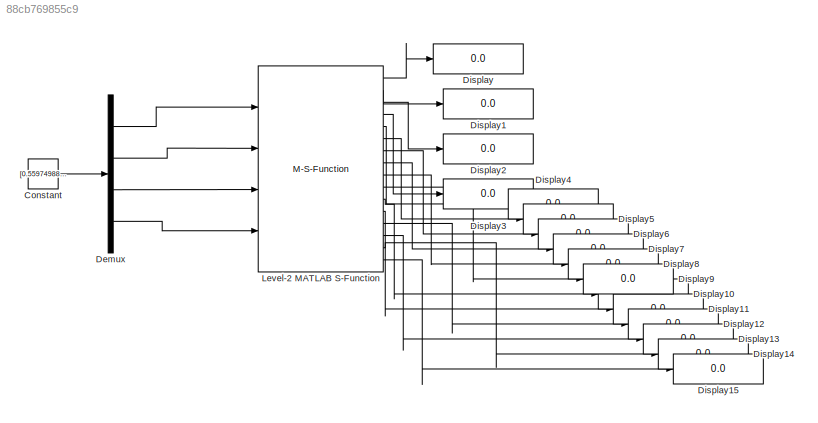
MODEL slx_88cb769855c9
KIND model
CONFIG AbsTol = auto
CONFIG EnableMultiTasking = off
CONFIG FixedStep = auto
CONFIG MaxStep = auto
CONFIG MinStep = auto
CONFIG RelTol = 1e-3
CONFIG SampleTimeConstraint = Unconstrained
CONFIG SolverName = VariableStepAuto
CONFIG StartTime = 0.0
CONFIG StopTime = 10.0
BLOCK [Constant] Constant
  Value = [0.559749888250068,2.03629310837718,1.03864119408452,-0.000110815770005286]
BLOCK [Demux] Demux
  Ports = [1, 4]
BLOCK [Display] Display
  Decimation = 1
  Ports = [1]
BLOCK [Display] Display1
  Decimation = 1
  Ports = [1]
BLOCK [Display] Display10
  Decimation = 1
  Ports = [1]
BLOCK [Display] Display11
  Decimation = 1
  Ports = [1]
BLOCK [Display] Display12
  Decimation = 1
  Ports = [1]
BLOCK [Display] Display13
  Decimation = 1
  Ports = [1]
BLOCK [Display] Display14
  Decimation = 1
  Ports = [1]
BLOCK [Display] Display15
  Decimation = 1
  Ports = [1]
BLOCK [Display] Display2
  Decimation = 1
  Ports = [1]
BLOCK [Display] Display3
  Decimation = 1
  Ports = [1]
BLOCK [Display] Display4
  Decimation = 1
  Ports = [1]
BLOCK [Display] Display5
  Decimation = 1
  Ports = [1]
BLOCK [Display] Display6
  Decimation = 1
  Ports = [1]
BLOCK [Display] Display7
  Decimation = 1
  Ports = [1]
BLOCK [Display] Display8
  Decimation = 1
  Ports = [1]
BLOCK [Display] Display9
  Decimation = 1
  Ports = [1]
BLOCK [M-S-Function] Level-2 MATLAB S-Function
  FunctionName = SlungQuadDynamics
  Ports = [4, 16]
LINE Constant:1 -> Demux:1
LINE Demux:1 -> Level-2 MATLAB S-Function:1
LINE Demux:2 -> Level-2 MATLAB S-Function:2
LINE Demux:3 -> Level-2 MATLAB S-Function:3
LINE Demux:4 -> Level-2 MATLAB S-Function:4
LINE Level-2 MATLAB S-Function:1 -> Display:1
LINE Level-2 MATLAB S-Function:10 -> Display9:1
LINE Level-2 MATLAB S-Function:11 -> Display10:1
LINE Level-2 MATLAB S-Function:12 -> Display11:1
LINE Level-2 MATLAB S-Function:13 -> Display12:1
LINE Level-2 MATLAB S-Function:14 -> Display13:1
LINE Level-2 MATLAB S-Function:15 -> Display14:1
LINE Level-2 MATLAB S-Function:16 -> Display15:1
LINE Level-2 MATLAB S-Function:2 -> Display1:1
LINE Level-2 MATLAB S-Function:3 -> Display2:1
LINE Level-2 MATLAB S-Function:4 -> Display3:1
LINE Level-2 MATLAB S-Function:5 -> Display4:1
LINE Level-2 MATLAB S-Function:6 -> Display5:1
LINE Level-2 MATLAB S-Function:7 -> Display6:1
LINE Level-2 MATLAB S-Function:8 -> Display7:1
LINE Level-2 MATLAB S-Function:9 -> Display8:1
